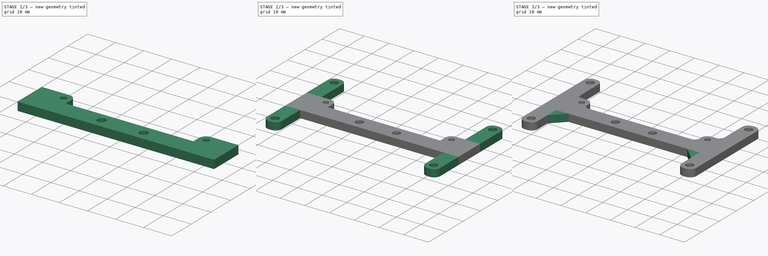
[diagram: build sequence overview — one tinted view per stage of 3, left to right]
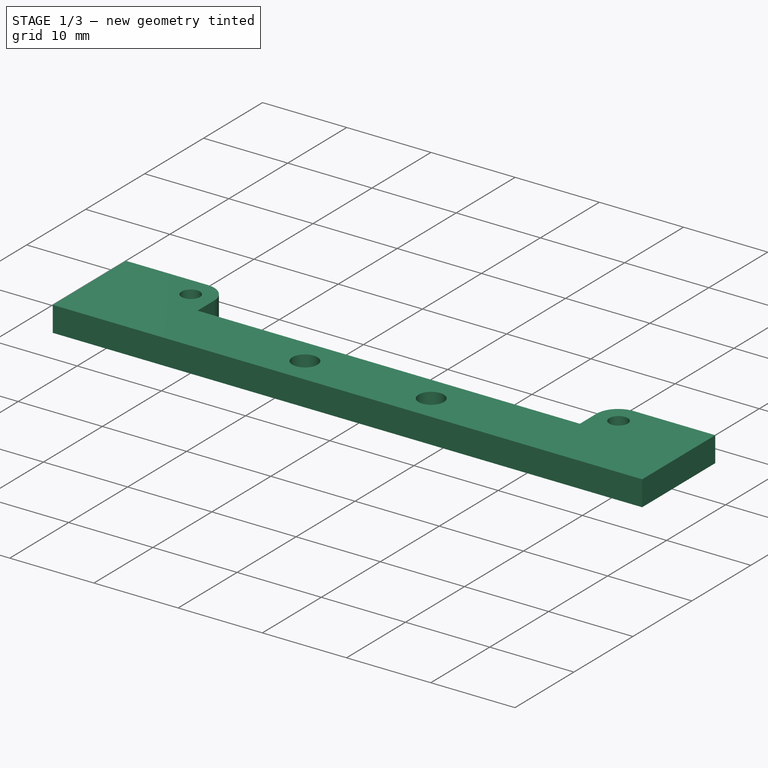
[diagram: stage 1 of 3 — iso view after this stage's code; geometry added in this stage tinted green]
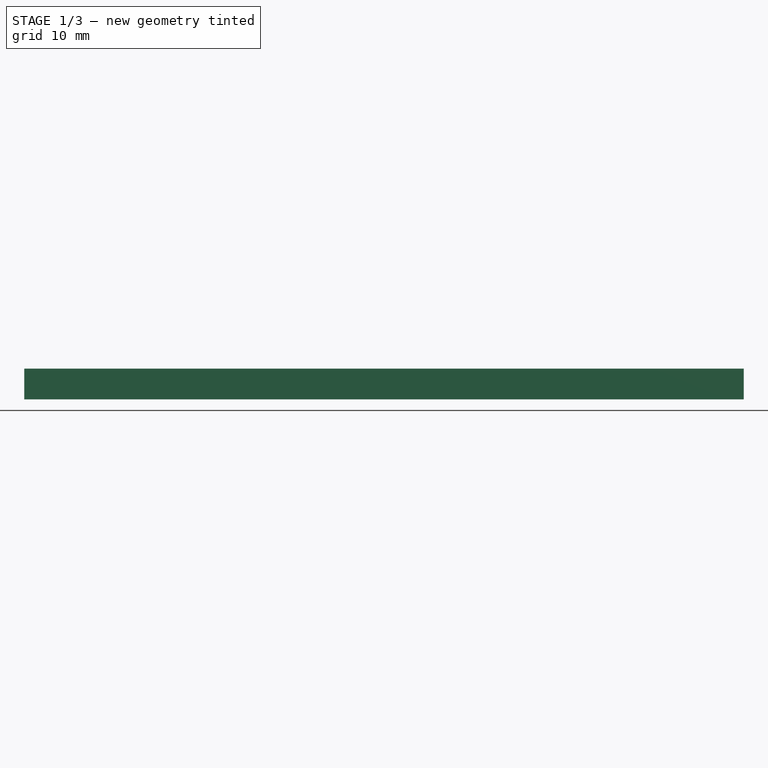
[diagram: stage 1 of 3 — front view after this stage's code; geometry added in this stage tinted green]
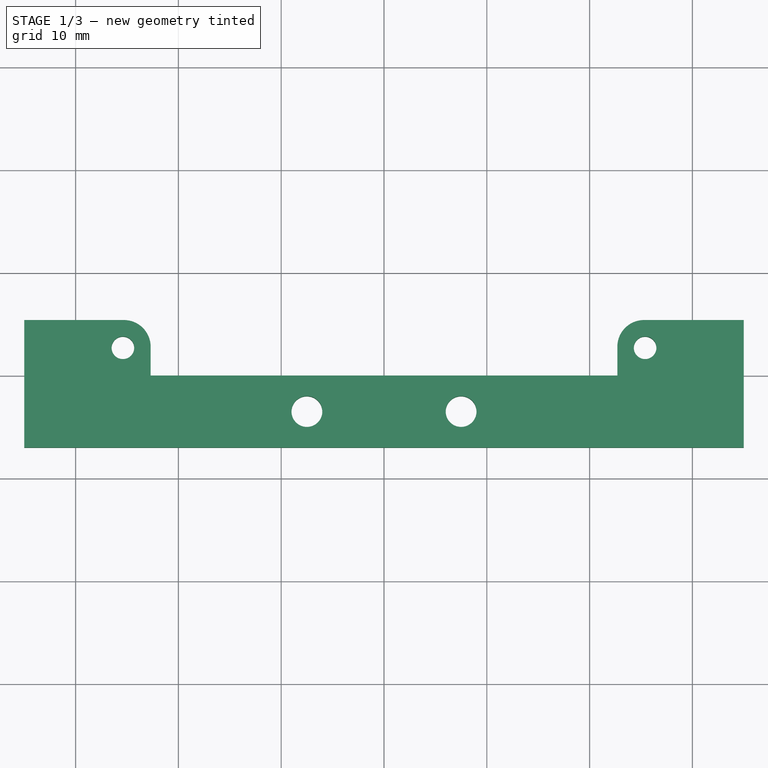
[diagram: stage 1 of 3 — top view after this stage's code; geometry added in this stage tinted green]
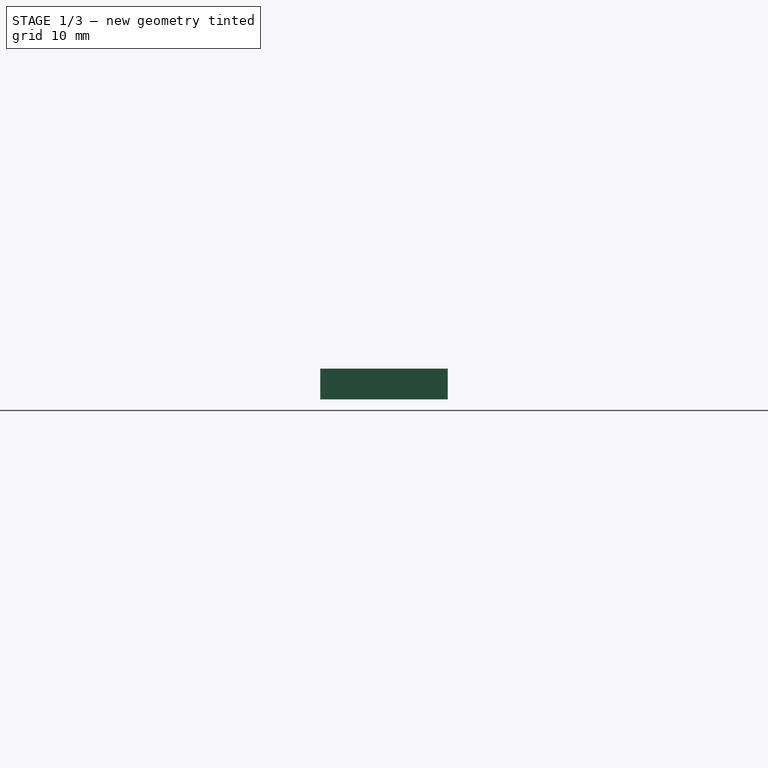
[diagram: stage 1 of 3 — right view after this stage's code; geometry added in this stage tinted green]
FCSTD DOCUMENT  (FreeCAD 0.16R6707 (Git))
Label: MultiSensorMount
License: All rights reserved
LicenseURL: http://en.wikipedia.org/wiki/All_rights_reserved
objects: PartDesign::Fillet×3, Sketcher::SketchObject×2, PartDesign::Pad×2, PartDesign::Chamfer×1
note: 10 computed .brp shape members not serialized (recipe doc carries the construction recipe); baked Part::Feature solids carry a one-line shape summary decoded from their .brp

FEATURE [Sketcher::SketchObject] Sketch
  sketch-geometry (14):
    g0: LineSegment StartX=-22.7 StartY=0 StartZ=0 EndX=-22.7 EndY=5.4 EndZ=0
    g1: LineSegment StartX=-22.7 StartY=5.4 StartZ=0 EndX=-35 EndY=5.4 EndZ=0
    g2: LineSegment StartX=-35 StartY=5.4 StartZ=0 EndX=-35 EndY=-7 EndZ=0
    g3: LineSegment StartX=-35 StartY=-7 StartZ=0 EndX=35 EndY=-7 EndZ=0
    g4: LineSegment StartX=35 StartY=-7 StartZ=0 EndX=35 EndY=5.4 EndZ=0
    g5: LineSegment StartX=35 StartY=5.4 StartZ=0 EndX=22.7 EndY=5.4 EndZ=0
    g6: LineSegment StartX=22.7 StartY=5.4 StartZ=0 EndX=22.7 EndY=0 EndZ=0
    g7: LineSegment StartX=22.7 StartY=0 StartZ=0 EndX=-22.7 EndY=0 EndZ=0
    g8: Circle CenterX=-7.5 CenterY=-3.5 CenterZ=0 NormalX=0 NormalY=0 NormalZ=1 Radius=1.5
    g9: Circle CenterX=7.5 CenterY=-3.5 CenterZ=0 NormalX=0 NormalY=0 NormalZ=1 Radius=1.5
    g10: Circle [constr] CenterX=-7.5 CenterY=-3.5 CenterZ=0 NormalX=0 NormalY=0 NormalZ=1 Radius=3.5
    g11: Circle [constr] CenterX=-25.4 CenterY=2.7 CenterZ=0 NormalX=0 NormalY=0 NormalZ=1 Radius=2.7
    g12: Circle CenterX=-25.4 CenterY=2.7 CenterZ=0 NormalX=0 NormalY=0 NormalZ=1 Radius=1.1
    g13: Circle CenterX=25.4 CenterY=2.7 CenterZ=0 NormalX=0 NormalY=0 NormalZ=1 Radius=1.1
  constraints (38):
    c: PointOnObject(g0,g-1)
    c: Vertical(g0)
    c: Coincident(g0,g1)
    c: Horizontal(g1)
    c: Coincident(g1,g2)
    c: Vertical(g2)
    c: Coincident(g2,g3)
    c: Horizontal(g3)
    c: Coincident(g3,g4)
    c: Vertical(g4)
    c: Coincident(g4,g5)
    c: Horizontal(g5)
    c: Coincident(g5,g6)
    c: PointOnObject(g6,g-1)
    c: Coincident(g6,g7)
    c: Coincident(g7,g0)
    c: Vertical(g6)
    c: Symmetric(g0,g6,g-2)
    c: Equal(g1,g5)
    c: Equal(g0,g6)
    c: Equal(g8,g9)
    c: Symmetric(g9,g8,g-2)
    c: Coincident(g10,g8)
    c: Tangent(g10,g7)
    c: Tangent(g3,g10)
    c: Radius(g8) = 1.5
    c: Radius(g10) = 3.5
    c: Distance(g8,g9) = 15
    c: Tangent(g11,g-1)
    c: Tangent(g11,g1)
    c: Radius(g11) = 2.7
    c: Coincident(g11,g12)
    c: Radius(g12) = 1.1
    c: Symmetric(g13,g11,g-2)
    c: Equal(g12,g13)
    c: Tangent(g0,g11)
    c: Distance(g3) = 70
    c: Distance(g11,g13) = 50.8
FEATURE [PartDesign::Pad] Pad
  Length = 3
  Length2 = 100
  Sketch = -> Sketch
  Type = 0
FEATURE [PartDesign::Fillet] Fillet
  Base = -> Pad [Edge2,Edge17]
  Radius = 2.6
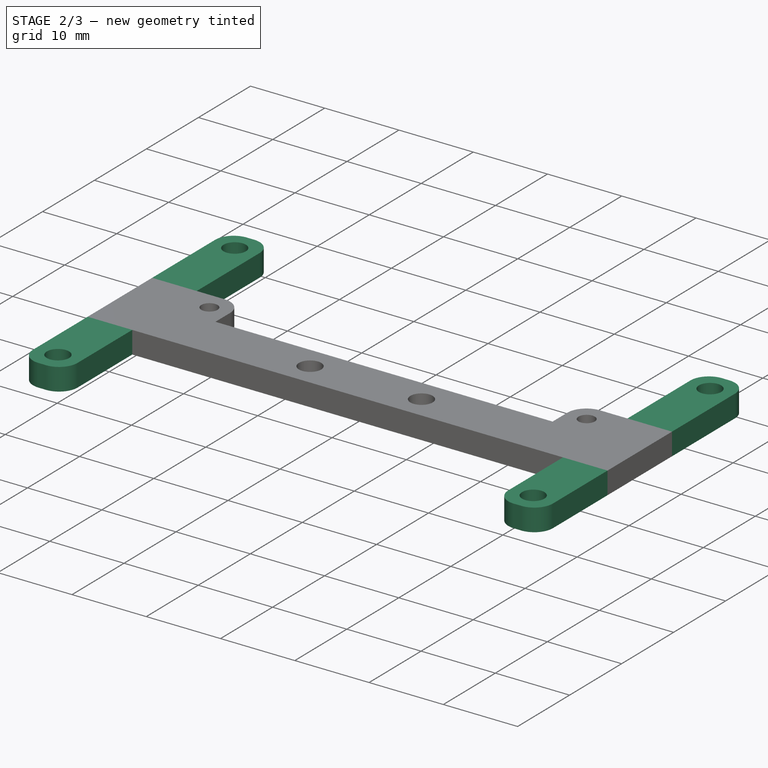
[diagram: stage 2 of 3 — iso view after this stage's code; geometry added in this stage tinted green]
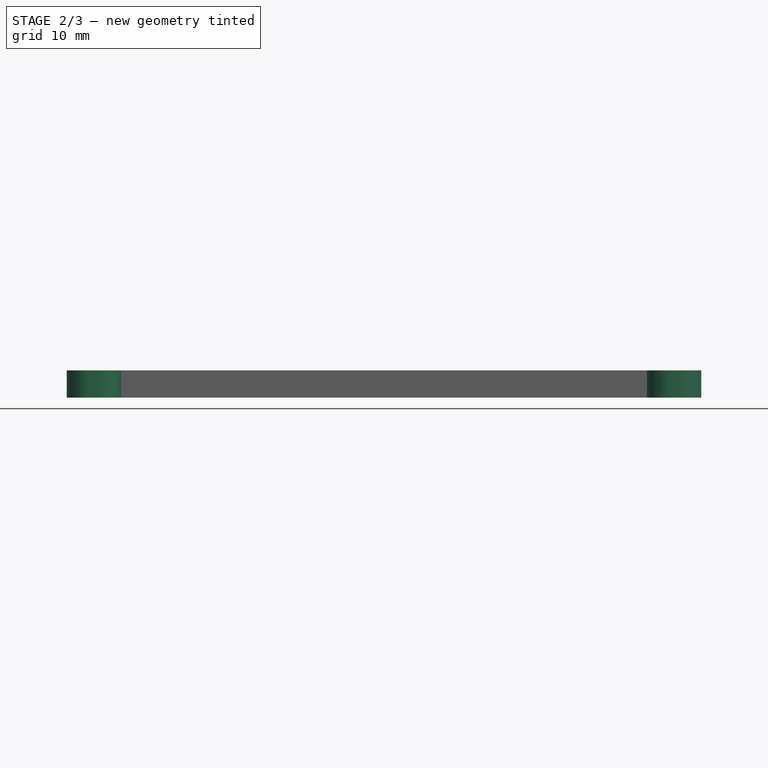
[diagram: stage 2 of 3 — front view after this stage's code; geometry added in this stage tinted green]
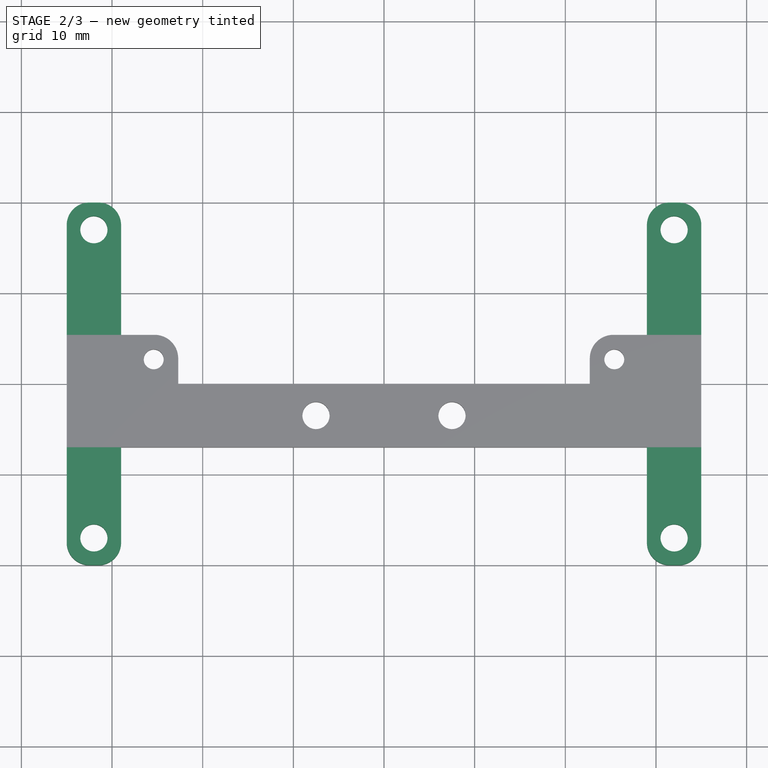
[diagram: stage 2 of 3 — top view after this stage's code; geometry added in this stage tinted green]
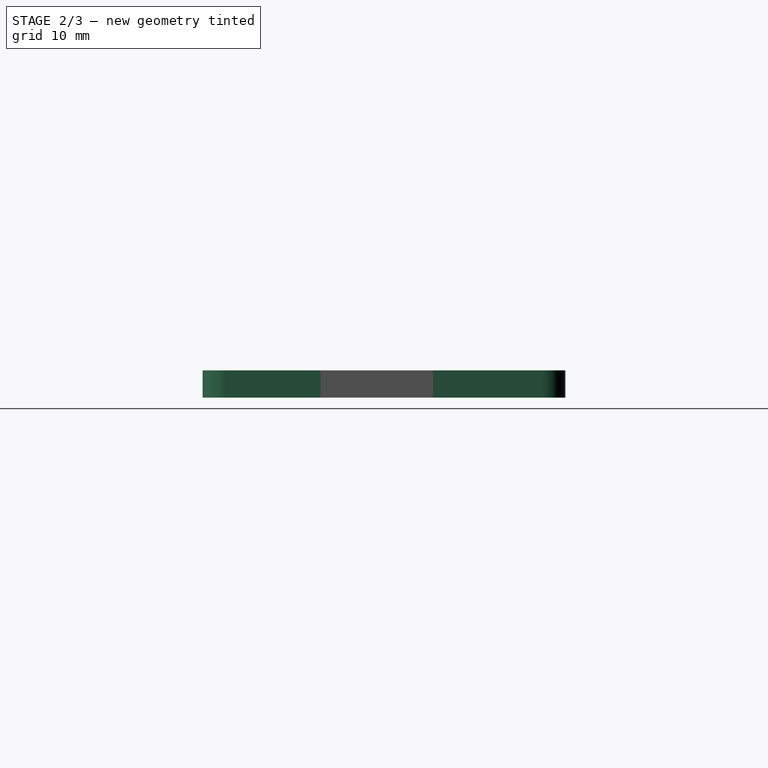
[diagram: stage 2 of 3 — right view after this stage's code; geometry added in this stage tinted green]
FEATURE [Sketcher::SketchObject] Sketch001
  Placement = pos=(0,0,3) rot=(0,0,1;0rad)
  Support = -> Fillet [Face5]
  sketch-geometry (12):
    g0: LineSegment StartX=-35 StartY=20 StartZ=0 EndX=-29 EndY=20 EndZ=0
    g1: LineSegment StartX=-29 StartY=20 StartZ=0 EndX=-29 EndY=-20 EndZ=0
    g2: LineSegment StartX=-29 StartY=-20 StartZ=0 EndX=-35 EndY=-20 EndZ=0
    g3: LineSegment StartX=-35 StartY=-20 StartZ=0 EndX=-35 EndY=20 EndZ=0
    g4: LineSegment StartX=29 StartY=20 StartZ=0 EndX=35 EndY=20 EndZ=0
    g5: LineSegment StartX=35 StartY=20 StartZ=0 EndX=35 EndY=-20 EndZ=0
    g6: LineSegment StartX=35 StartY=-20 StartZ=0 EndX=29 EndY=-20 EndZ=0
    g7: LineSegment StartX=29 StartY=-20 StartZ=0 EndX=29 EndY=20 EndZ=0
    g8: Circle CenterX=-32 CenterY=17 CenterZ=0 NormalX=0 NormalY=0 NormalZ=1 Radius=1.5
    g9: Circle CenterX=-32 CenterY=-17 CenterZ=0 NormalX=0 NormalY=0 NormalZ=1 Radius=1.5
    g10: Circle CenterX=32 CenterY=17 CenterZ=0 NormalX=0 NormalY=0 NormalZ=1 Radius=1.5
    g11: Circle CenterX=32 CenterY=-17 CenterZ=0 NormalX=0 NormalY=0 NormalZ=1 Radius=1.5
  constraints (31):
    c: Coincident(g0,g1)
    c: Coincident(g1,g2)
    c: Coincident(g2,g3)
    c: Coincident(g3,g0)
    c: Horizontal(g0)
    c: Horizontal(g2)
    c: Vertical(g1)
    c: Vertical(g3)
    c: Coincident(g4,g5)
    c: Coincident(g5,g6)
    c: Coincident(g6,g7)
    c: Coincident(g7,g4)
    c: Horizontal(g4)
    c: Horizontal(g6)
    c: Vertical(g5)
    c: Vertical(g7)
    c: Distance(g3) = 40
    c: Symmetric(g2,g0,g-1)
    c: DistanceX(g2,g-1) = 35
    c: Symmetric(g9,g8,g-1)
    c: Equal(g9,g8)
    c: DistanceY(g2,g9) = 3
    c: DistanceX(g2,g9) = 3
    c: Distance(g2) = 6
    c: Radius(g8) = 1.5
    c: Symmetric(g4,g0,g-2)
    c: Symmetric(g6,g1,g-2)
    c: Equal(g11,g10)
    c: Equal(g10,g8)
    c: Symmetric(g11,g9,g-2)
    c: Symmetric(g10,g8,g-2)
FEATURE [PartDesign::Pad] Pad001
  Length = 3
  Length2 = 100
  Reversed = true
  Sketch = -> Sketch001
  Type = 0
FEATURE [PartDesign::Fillet] Fillet001
  Base = -> Pad001 [Edge97,Edge71,Edge69,Edge99,Edge100,Edge82,Edge57,Edge95]
  Radius = 2.5
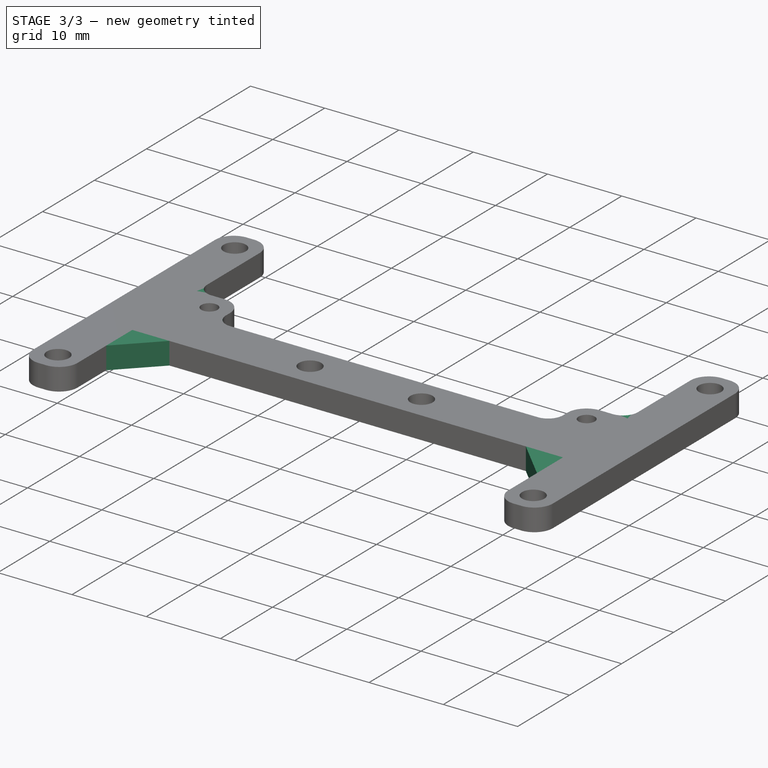
[diagram: stage 3 of 3 — iso view after this stage's code; geometry added in this stage tinted green]
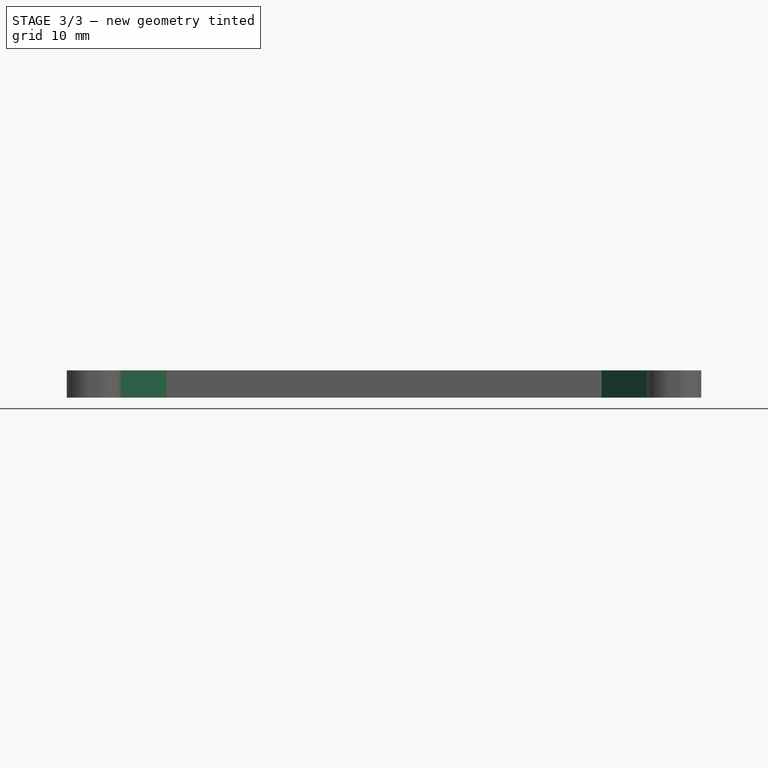
[diagram: stage 3 of 3 — front view after this stage's code; geometry added in this stage tinted green]
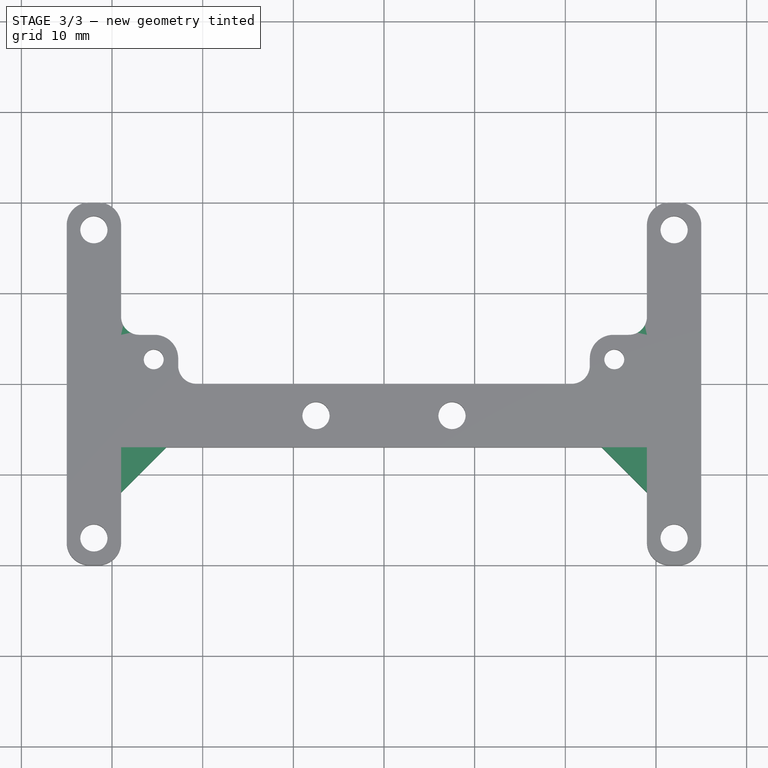
[diagram: stage 3 of 3 — top view after this stage's code; geometry added in this stage tinted green]
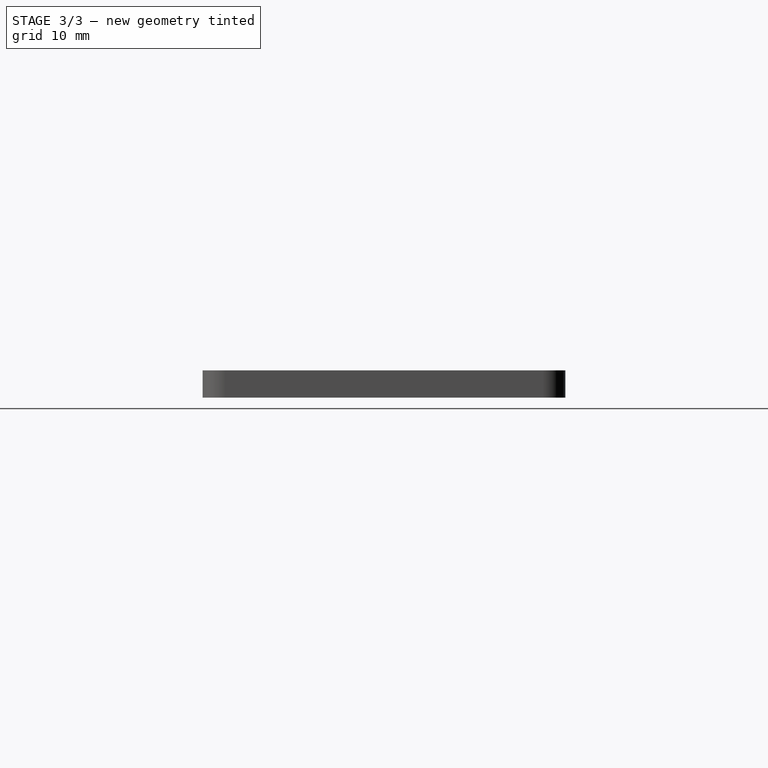
[diagram: stage 3 of 3 — right view after this stage's code; geometry added in this stage tinted green]
FEATURE [PartDesign::Chamfer] Chamfer
  Base = -> Fillet001 [Edge64,Edge63]
  Size = 5
FEATURE [PartDesign::Fillet] Fillet002
  Base = -> Chamfer [Edge40,Edge50,Edge52,Edge45]
  Radius = 2
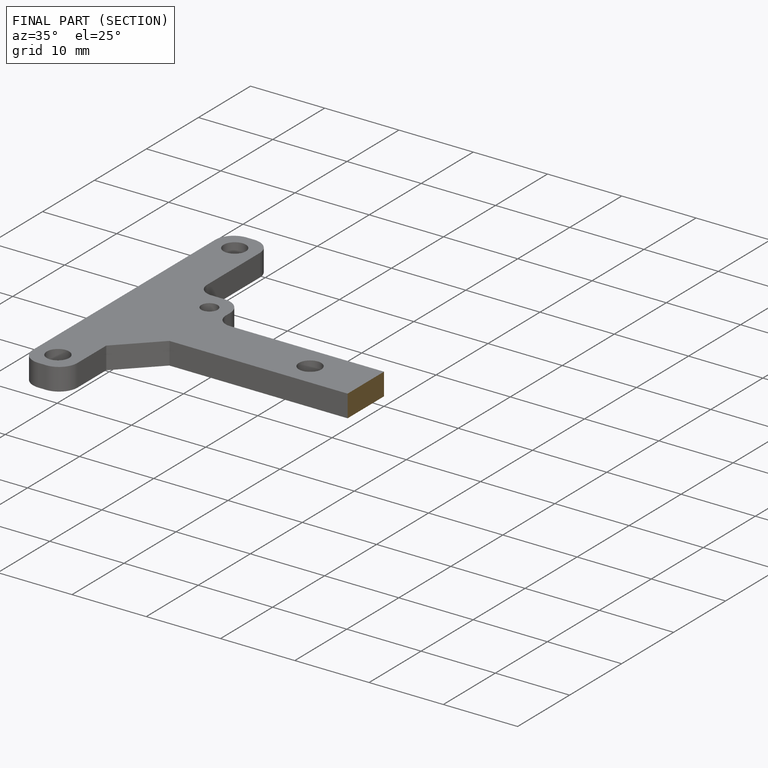
[diagram: finished part — half-section view (interior)]
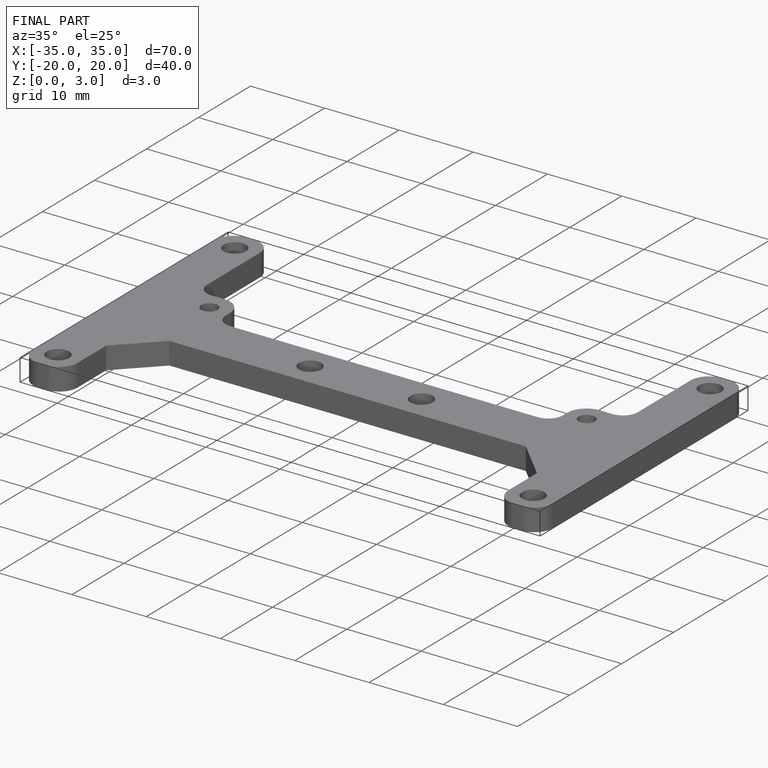
[diagram: finished part — iso view with bounding-box wireframe]
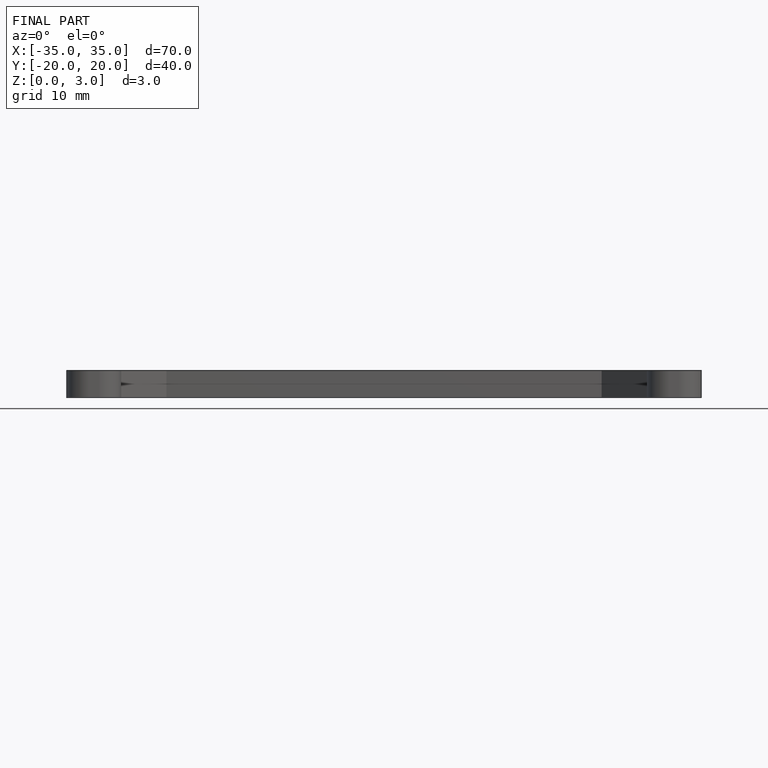
[diagram: finished part — front view with bounding-box wireframe]
